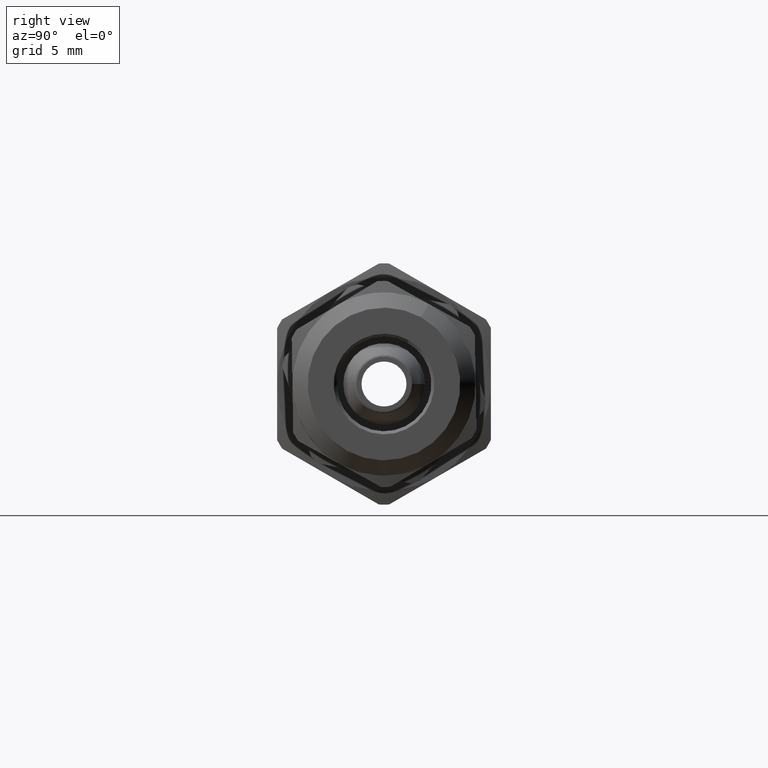
[diagram: clean part render]
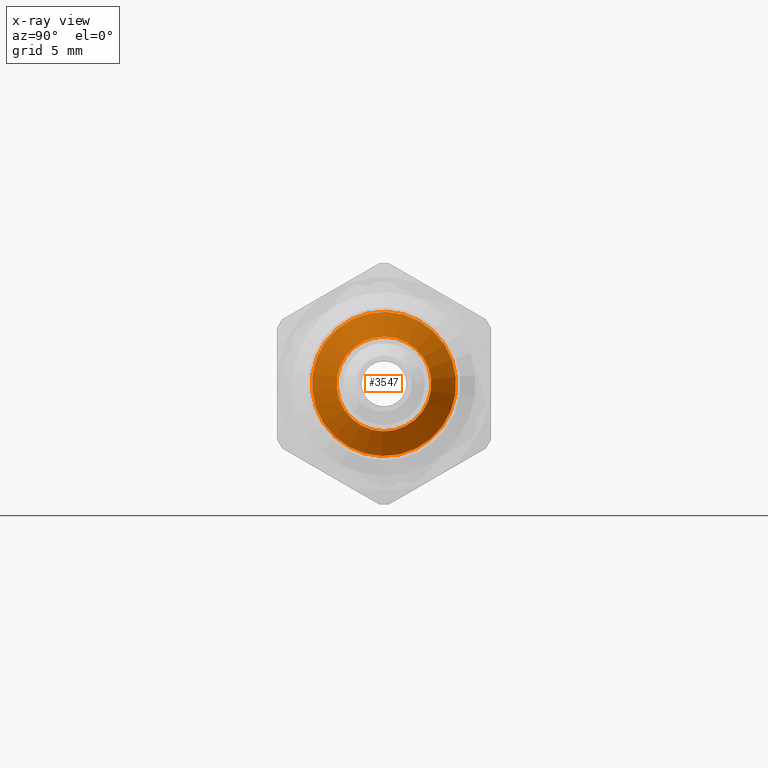
[diagram: x-ray — body ghosted, one internal face saturated and labeled with its STEP entity id]
A machine part, right view, then the same camera in x-ray: the body is ghosted and one INTERNAL B-rep face — a face not visible from any outside direction — is saturated and labeled: STEP entity #3547.
In plain terms, the highlighted conical surface has half-angle 60 deg.
Its self-contained STEP definition (entity closure, byte-faithful):
#2727=CARTESIAN_POINT('',(3.0,4.72371509502941,0.0));
#2728=VERTEX_POINT('',#2727);
#2729=CARTESIAN_POINT('',(3.000000000000001,3.673940E-016,0.0));
#2730=DIRECTION('',(1.0,0.0,0.0));
#2731=DIRECTION('',(0.0,1.0,0.0));
#2732=AXIS2_PLACEMENT_3D('',#2729,#2730,#2731);
#2733=CIRCLE('',#2732,4.723715095029409);
#2734=EDGE_CURVE('',#2728,#2728,#2733,.T.);
#2880=CARTESIAN_POINT('',(2.062547652797513,3.100000000000001,0.0));
#2881=VERTEX_POINT('',#2880);
#2882=CARTESIAN_POINT('',(2.062547652797513,2.525892E-016,0.0));
#2883=DIRECTION('',(1.0,0.0,0.0));
#2884=DIRECTION('',(0.0,1.0,0.0));
#2885=AXIS2_PLACEMENT_3D('',#2882,#2883,#2884);
#2886=CIRCLE('',#2885,3.100000000000001);
#2887=EDGE_CURVE('',#2881,#2881,#2886,.T.);
#3536=CARTESIAN_POINT('',(2.531273826398757,3.099916E-016,0.0));
#3537=DIRECTION('',(1.0,1.224647E-016,0.0));
#3538=DIRECTION('',(0.0,1.0,0.0));
#3539=AXIS2_PLACEMENT_3D('',#3536,#3537,#3538);
#3540=CONICAL_SURFACE('',#3539,3.911857547514704,59.999999999999993);
#3541=ORIENTED_EDGE('',*,*,#2887,.F.);
#3542=EDGE_LOOP('',(#3541));
#3543=FACE_OUTER_BOUND('',#3542,.T.);
#3544=ORIENTED_EDGE('',*,*,#2734,.T.);
#3545=EDGE_LOOP('',(#3544));
#3546=FACE_BOUND('',#3545,.T.);
#3547=ADVANCED_FACE('',(#3543,#3546),#3540,.F.);